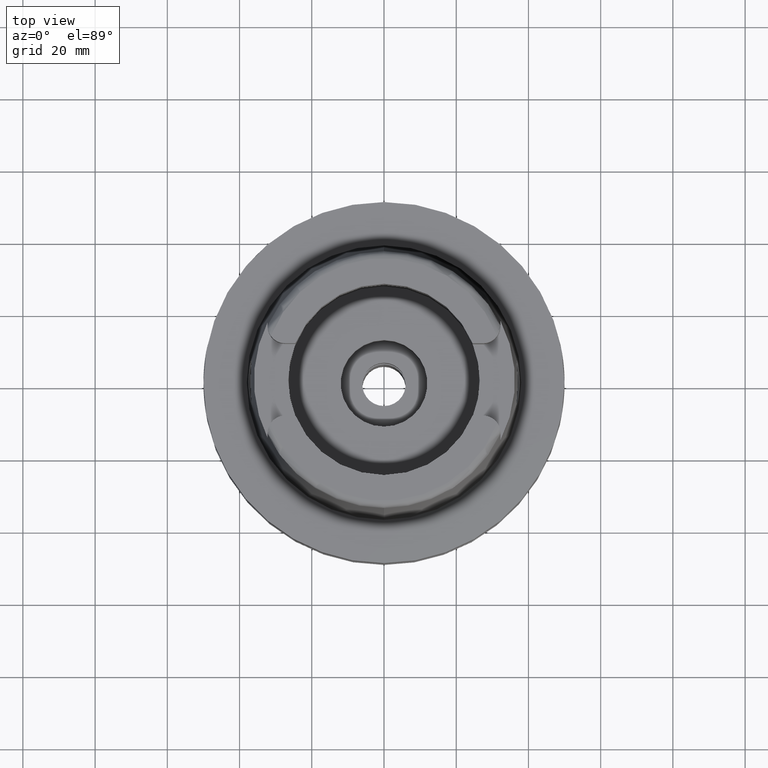
[diagram: clean part render]
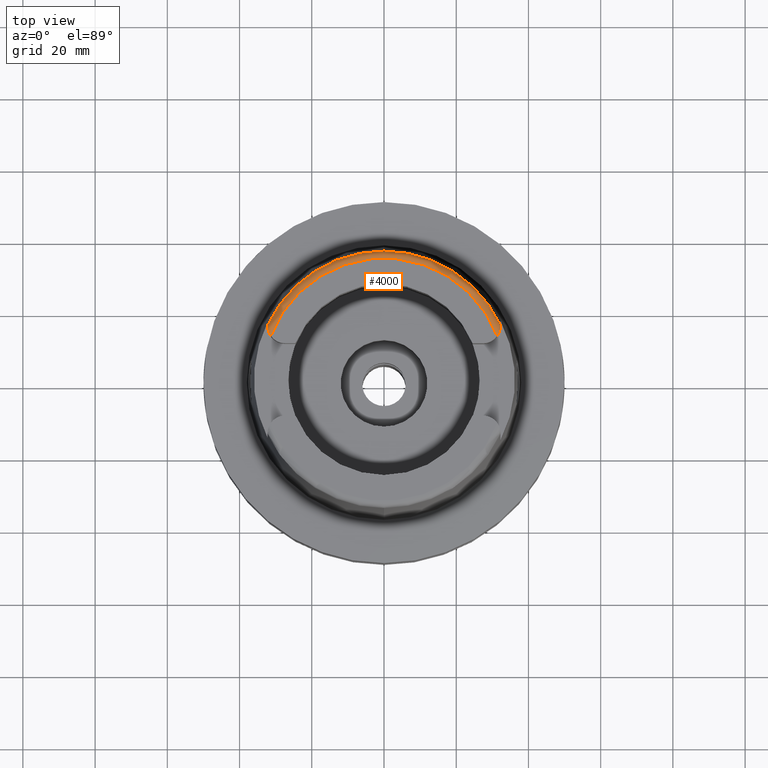
[diagram: same view with one face highlighted and labeled with its STEP entity id]
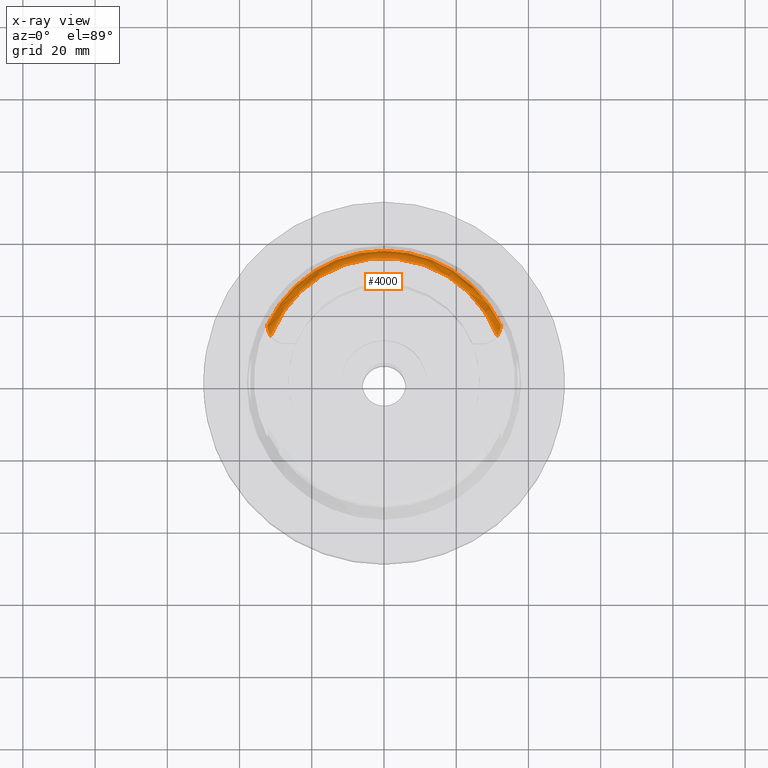
[diagram: x-ray of the same camera — body ghosted, the highlighted face saturated]
A machine part, top view. The second image highlights one B-rep face of the part: STEP entity #4000.
The next image is the same camera in x-ray: the body ghosted, the highlighted face saturated — about 0% of this face is hidden behind the body in this view.
In plain terms, the highlighted toroidal blend (fillet) surface has major radius 33.5974 mm and minor (blend) radius 2 mm.
Its self-contained STEP definition (entity closure, byte-faithful):
#26=CARTESIAN_POINT('',(0.E0,0.E0,5.E1));
#27=DIRECTION('',(0.E0,0.E0,-1.E0));
#28=DIRECTION('',(-9.332215253018E-1,3.593015233942E-1,0.E0));
#29=AXIS2_PLACEMENT_3D('',#26,#27,#28);
#2113=CARTESIAN_POINT('',(-3.135385269249E1,1.207161079257E1,5.E1));
#2114=CARTESIAN_POINT('',(-3.142369980438E1,1.217034116098E1,5.E1));
#2115=CARTESIAN_POINT('',(-3.156364204033E1,1.238306169749E1,4.998533896853E1));
#2116=CARTESIAN_POINT('',(-3.177170285761E1,1.276736370819E1,4.990434874105E1));
#2117=CARTESIAN_POINT('',(-3.194449056958E1,1.317210982727E1,4.976751949605E1));
#2118=CARTESIAN_POINT('',(-3.207399897041E1,1.357121518566E1,4.958803111070E1));
#2119=CARTESIAN_POINT('',(-3.215878041872E1,1.393021114520E1,4.938879218818E1));
#2120=CARTESIAN_POINT('',(-3.221034193791E1,1.424628120920E1,4.917911048305E1));
#2121=CARTESIAN_POINT('',(-3.223756487467E1,1.451432776194E1,4.896645985246E1));
#2122=CARTESIAN_POINT('',(-3.224878409172E1,1.473463180280E1,4.875192705049E1));
#2123=CARTESIAN_POINT('',(-3.225E1,1.484397305253E1,4.861398746856E1));
#2124=CARTESIAN_POINT('',(-3.225E1,1.489E1,4.854599893822E1));
#2129=CARTESIAN_POINT('',(-3.225E1,1.489E1,4.854599893822E1));
#2130=CARTESIAN_POINT('',(-3.225E1,1.492404692672E1,4.849570664996E1));
#2131=CARTESIAN_POINT('',(-3.225000018245E1,1.498180929534E1,4.839522998677E1));
#2132=CARTESIAN_POINT('',(-3.224999936141E1,1.503950517373E1,4.824394439294E1));
#2133=CARTESIAN_POINT('',(-3.225000136841E1,1.505882711047E1,4.814736191146E1));
#2134=CARTESIAN_POINT('',(-3.225000136841E1,1.506443226681E1,4.809991935131E1));
#2139=CARTESIAN_POINT('',(0.E0,0.E0,4.809987853799E1));
#2140=DIRECTION('',(0.E0,0.E0,-1.E0));
#2141=DIRECTION('',(-9.060276961631E-1,4.232183996300E-1,0.E0));
#2142=AXIS2_PLACEMENT_3D('',#2139,#2140,#2141);
#2147=CARTESIAN_POINT('',(0.E0,0.E0,4.809987853799E1));
#2148=DIRECTION('',(0.E0,0.E0,-1.E0));
#2149=DIRECTION('',(0.E0,1.E0,0.E0));
#2150=AXIS2_PLACEMENT_3D('',#2147,#2148,#2149);
#2155=CARTESIAN_POINT('',(3.224998031234E1,1.506460280307E1,4.809931504124E1));
#2156=CARTESIAN_POINT('',(3.224998031234E1,1.505857874125E1,4.815030325599E1));
#2157=CARTESIAN_POINT('',(3.225000918757E1,1.503782656365E1,4.824980625655E1));
#2158=CARTESIAN_POINT('',(3.224999737498E1,1.497919671486E1,4.840032901871E1));
#2159=CARTESIAN_POINT('',(3.225E1,1.492268316771E1,4.849772112138E1));
#2160=CARTESIAN_POINT('',(3.225E1,1.489E1,4.854599893822E1));
#2165=CARTESIAN_POINT('',(3.225E1,1.489E1,4.854599893822E1));
#2166=CARTESIAN_POINT('',(3.225E1,1.484118534397E1,4.861810532165E1));
#2167=CARTESIAN_POINT('',(3.224852880869E1,1.472731938178E1,4.875958601966E1));
#2168=CARTESIAN_POINT('',(3.223747577632E1,1.451543082845E1,4.896484066567E1));
#2169=CARTESIAN_POINT('',(3.221161097286E1,1.425753273303E1,4.917062356525E1));
#2170=CARTESIAN_POINT('',(3.216204926154E1,1.394586347523E1,4.937954473543E1));
#2171=CARTESIAN_POINT('',(3.207473563768E1,1.357246269515E1,4.958787861935E1));
#2172=CARTESIAN_POINT('',(3.194230061260E1,1.316574506635E1,4.977023262301E1));
#2173=CARTESIAN_POINT('',(3.176651602478E1,1.275654160215E1,4.990739434730E1));
#2174=CARTESIAN_POINT('',(3.155896043464E1,1.237558455627E1,4.998617032718E1));
#2175=CARTESIAN_POINT('',(3.142162707532E1,1.216741131467E1,5.E1));
#2176=CARTESIAN_POINT('',(3.135385269249E1,1.207161079257E1,5.E1));
#2182=CARTESIAN_POINT('',(-3.135385269249E1,1.207161079257E1,5.E1));
#2184=VERTEX_POINT('',#2182);
#2185=CARTESIAN_POINT('',(3.135385269249E1,1.207161079257E1,5.E1));
#2186=VERTEX_POINT('',#2185);
#2213=CARTESIAN_POINT('',(-3.225E1,1.489E1,4.854599893822E1));
#2214=VERTEX_POINT('',#2213);
#2232=VERTEX_POINT('',#2134);
#2233=CARTESIAN_POINT('',(0.E0,3.559494289391E1,4.809987853799E1));
#2234=VERTEX_POINT('',#2233);
#2235=CARTESIAN_POINT('',(3.224994093704E1,1.506456999646E1,4.809987853799E1));
#2236=VERTEX_POINT('',#2235);
#2237=VERTEX_POINT('',#2160);
#3984=CARTESIAN_POINT('',(0.E0,0.E0,4.8E1));
#3985=DIRECTION('',(0.E0,0.E0,1.E0));
#3986=DIRECTION('',(-4.184165975220E-4,-9.999999124638E-1,0.E0));
#3987=AXIS2_PLACEMENT_3D('',#3984,#3985,#3986);
#3988=TOROIDAL_SURFACE('',#3987,3.359743838136E1,2.E0);
#3989=ORIENTED_EDGE('',*,*,#2531,.T.);
#3991=ORIENTED_EDGE('',*,*,#3990,.T.);
#3992=ORIENTED_EDGE('',*,*,#2689,.T.);
#3993=ORIENTED_EDGE('',*,*,#2711,.T.);
#3995=ORIENTED_EDGE('',*,*,#3994,.T.);
#3996=ORIENTED_EDGE('',*,*,#3975,.T.);
#3997=ORIENTED_EDGE('',*,*,#2504,.F.);
#3998=EDGE_LOOP('',(#3989,#3991,#3992,#3993,#3995,#3996,#3997));
#3999=FACE_OUTER_BOUND('',#3998,.F.);
#30=CIRCLE('',#29,3.359743838136E1);
#2125=B_SPLINE_CURVE_WITH_KNOTS('',3,(#2113,#2114,#2115,#2116,#2117,#2118,#2119,
#2120,#2121,#2122,#2123,#2124),.UNSPECIFIED.,.F.,.F.,(4,1,1,1,1,1,1,1,1,4),
(0.E0,1.111111111111E-1,2.222222222222E-1,3.333333333333E-1,4.444444444444E-1,
5.555555555556E-1,6.666666666667E-1,7.777777777778E-1,8.888888888889E-1,1.E0),
.UNSPECIFIED.);
#2135=B_SPLINE_CURVE_WITH_KNOTS('',3,(#2129,#2130,#2131,#2132,#2133,#2134),
.UNSPECIFIED.,.F.,.F.,(4,1,1,4),(0.E0,3.333333333333E-1,6.666666666667E-1,1.E0),
.UNSPECIFIED.);
#2143=CIRCLE('',#2142,3.559494289391E1);
#2151=CIRCLE('',#2150,3.559494289391E1);
#2161=B_SPLINE_CURVE_WITH_KNOTS('',3,(#2155,#2156,#2157,#2158,#2159,#2160),
.UNSPECIFIED.,.F.,.F.,(4,1,1,4),(0.E0,3.333333333333E-1,6.666666666667E-1,1.E0),
.UNSPECIFIED.);
#2177=B_SPLINE_CURVE_WITH_KNOTS('',3,(#2165,#2166,#2167,#2168,#2169,#2170,#2171,
#2172,#2173,#2174,#2175,#2176),.UNSPECIFIED.,.F.,.F.,(4,1,1,1,1,1,1,1,1,4),
(0.E0,1.111111111111E-1,2.222222222222E-1,3.333333333333E-1,4.444444444444E-1,
5.555555555556E-1,6.666666666667E-1,7.777777777778E-1,8.888888888889E-1,1.E0),
.UNSPECIFIED.);
#2504=EDGE_CURVE('',#2184,#2186,#30,.T.);
#2531=EDGE_CURVE('',#2184,#2214,#2125,.T.);
#2689=EDGE_CURVE('',#2232,#2234,#2143,.T.);
#2711=EDGE_CURVE('',#2234,#2236,#2151,.T.);
#3975=EDGE_CURVE('',#2237,#2186,#2177,.T.);
#3990=EDGE_CURVE('',#2214,#2232,#2135,.T.);
#3994=EDGE_CURVE('',#2236,#2237,#2161,.T.);
#4000=ADVANCED_FACE('',(#3999),#3988,.T.);